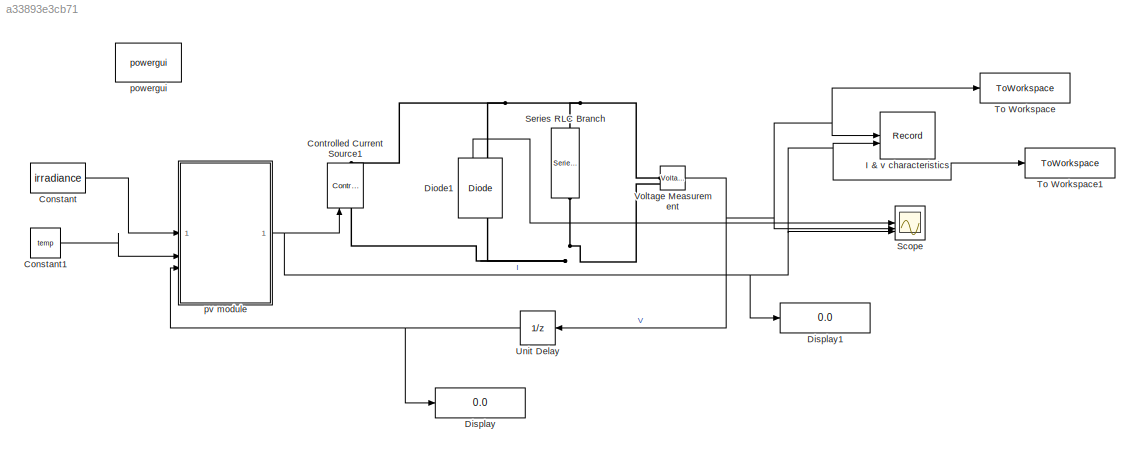
MODEL slx_a33893e3cb71
KIND model
CONFIG AbsTol = auto
CONFIG EnableMultiTasking = on
CONFIG FixedStep = 1e-5
CONFIG MaxStep = auto
CONFIG MinStep = auto
CONFIG RelTol = 1e-3
CONFIG SampleTimeConstraint = Unconstrained
CONFIG SolverName = ode4
CONFIG StartTime = 0.0
CONFIG StopTime = 0.2
WORKSPACE source: mxarray member
WORKSPACE Temperature = 1
WORKSPACE irradience = 1
BLOCK [Constant] Constant
  Value = irradiance
BLOCK [Constant] Constant1
  Value = temp
BLOCK [Reference] Controlled Current Source1  REF=spsControlledCurrentSourceLib/Controlled Current Source
  LibrarySourceBlock = sps_lib/Sources/Controlled Current Source
  NameLocation = right
  SourceBlock = spsControlledCurrentSourceLib/Controlled Current Source
  SourceType = Controlled Current Source
BLOCK [Reference] Diode1  REF=spsDiodeLib/Diode
  LibrarySourceBlock = sps_lib/Power Electronics/Diode
  NameLocation = right
  SourceBlock = spsDiodeLib/Diode
  SourceType = Diode
BLOCK [Display] Display
  Decimation = 1
BLOCK [Display] Display1
  Decimation = 1
BLOCK [Record] I & v characteristics
  CompatibilityTag = XY
  FileSettingsInternal = {"entries":[{"content":{"excelSettings":{"content":{},"type":"Streamout.ExcelSettings"}},"type":"Streamout.FileSettingStorage","uuid":""}],"packageUris":["http:\/\/schema.mathworks.com\/mf0\/streamout_blocks\/R2020a"],"version":"1.0"}
  Layout = [1 1]
  SignalsInternal = {"entries":[{"content":{"signals":[{"content":{"blockPath":[],"dimensions":[1],"domain":"","lineColor":"#a2142f","plots":[ 1 ],"port":1,"signalID":1,"signalName":"V"},"type":"RecordBlkView.Signal","uuid":""},{"content":{"blockPath":[],"dimensions":[1],"domain":"","lineColor":"#139fff","plots":[ 1 ],"port":2,"signalID":2,"signalName":"I"},"type":"RecordBlkView.Signal","uuid":""}]},"type":"RecordBlk...<+126ch>
  VisualizationBindings = {"xyplotplugin":{"info":[{"series":[{"bindingParametersList":[{"parameter":"X-Axis","signalID":1,"signalName":"V"},{"parameter":"Y-Axis","signalID":2,"signalName":"I"}],"seriesID":0}],"subplotID":1}]}}
  st = -1
BLOCK [Scope] Scope
  Floating = off
  NumInputPorts = 3
  ScopeSpecificationString = Simulink.scopes.TimeScopeBlockCfg('CurrentConfiguration', extmgr.ConfigurationSet(extmgr.Configuration('Core','General UI',true),extmgr.Configuration('Core','Source UI',true),extmgr.Configuration('Sources','WiredSimulink',true,'DataLoggingLimitDataPoints',true,'DataLoggingSaveFormat','Array','DataLoggingDecimation','1','DataLoggingDecimateData',true),extmgr.Configuration('Visuals','Time Domain',tr...<+2564ch>
BLOCK [Reference] Series RLC Branch  REF=spsSeriesRLCBranchLib/Series RLC Branch
  LibrarySourceBlock = sps_lib/Passives/Series RLC Branch
  NameLocation = left
  SourceBlock = spsSeriesRLCBranchLib/Series RLC Branch
  SourceType = Series RLC Branch
BLOCK [ToWorkspace] To Workspace
  FixptAsFi = on
  MaxDataPoints = inf
  SampleTime = -1
  VariableName = Vout
BLOCK [ToWorkspace] To Workspace1
  FixptAsFi = on
  MaxDataPoints = inf
  SampleTime = -1
  VariableName = Iout
BLOCK [UnitDelay] Unit Delay
  HasFrameUpgradeWarning = on
  NameLocation = top
  SampleTime = -1
BLOCK [Reference] Voltage Measurement  REF=spsVoltageMeasurementLib/Voltage Measurement
  LibrarySourceBlock = sps_lib/Sensors and Measurements/Voltage Measurement
  SourceBlock = spsVoltageMeasurementLib/Voltage Measurement
  SourceType = Voltage Measurement
BLOCK [Reference] powergui  REF=spspowerguiLib/powergui
  LibrarySourceBlock = sps_lib/powergui
  Priority = 1
  SourceBlock = spspowerguiLib/powergui
  SourceType = PSB option menu block
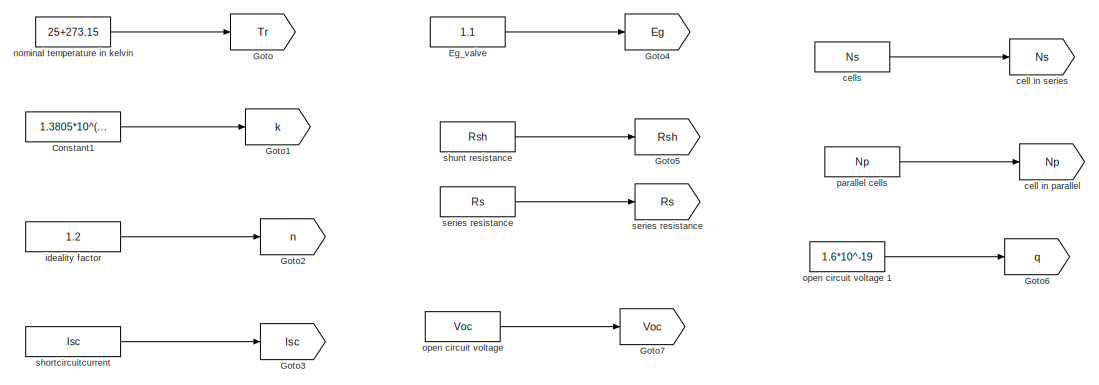
[diagram: pv module - part 1/4, top center region]
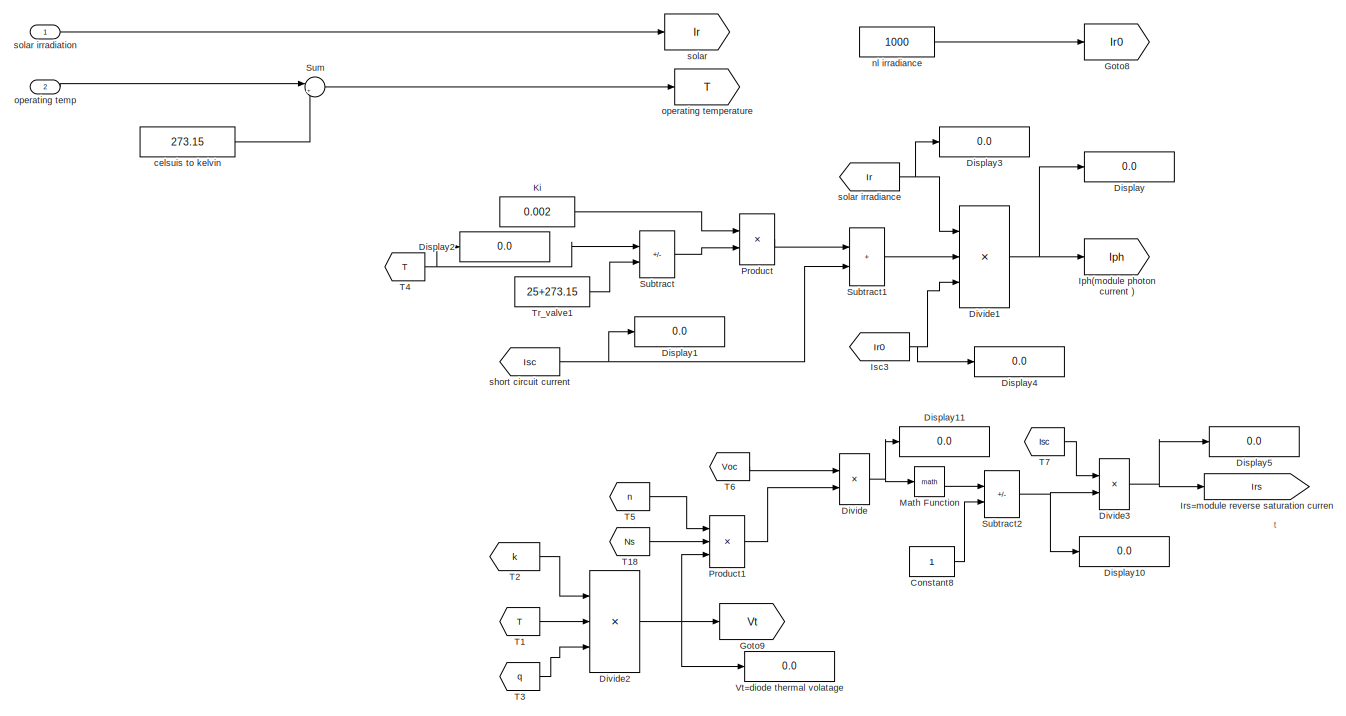
[diagram: pv module - part 2/4, top center region]
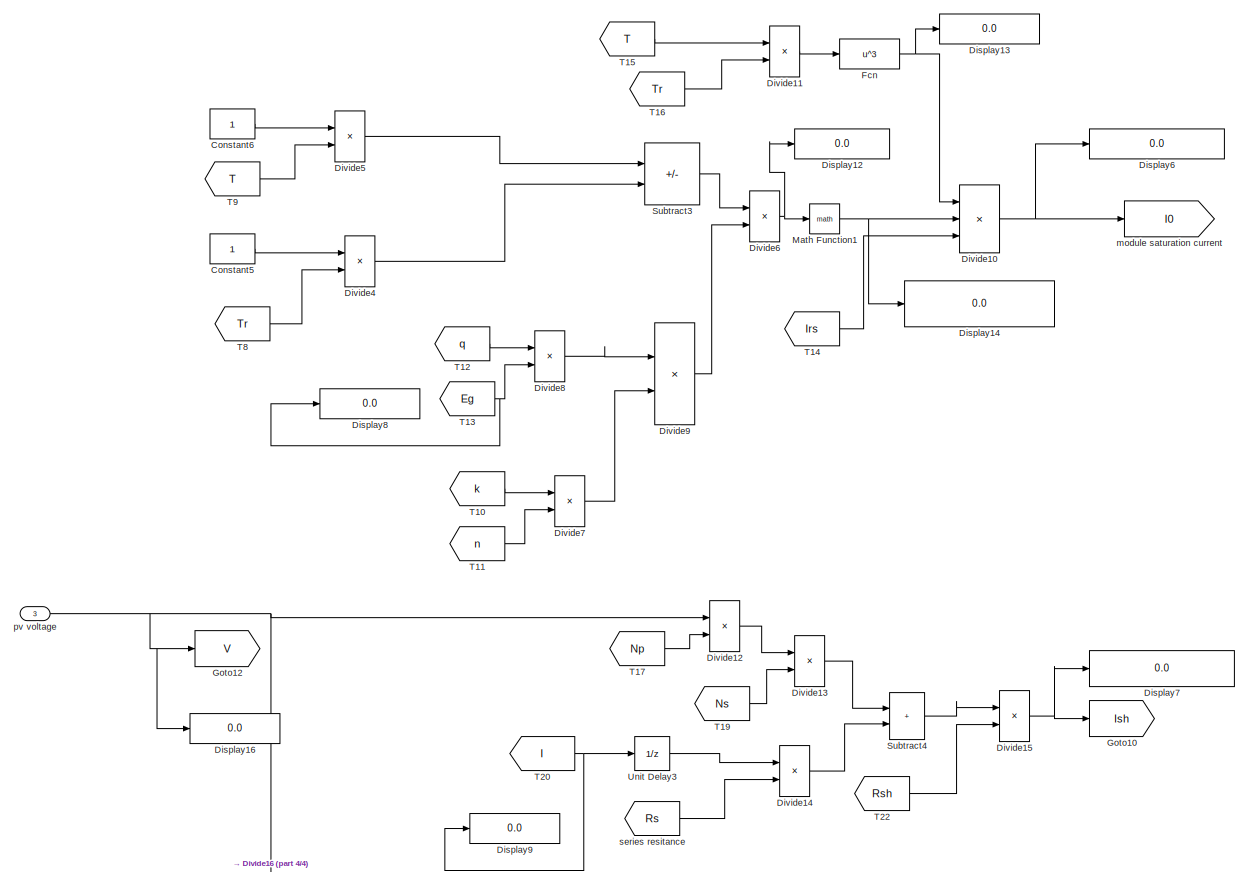
[diagram: pv module - part 3/4, central region]
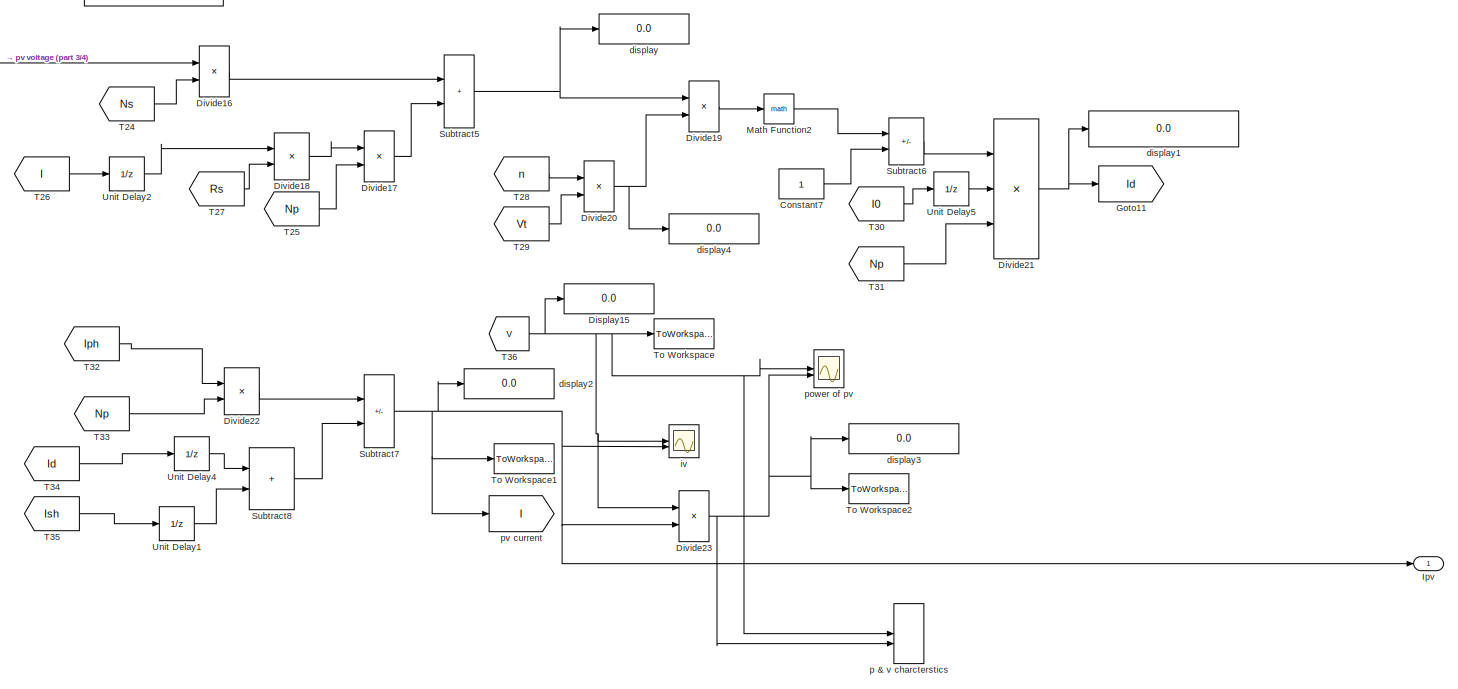
[diagram: pv module - part 4/4, full width, bottom band]
BLOCK [SubSystem] pv module
BLOCK [Constant] pv module/Constant1
  Value = 1.3805*10^(-23)
BLOCK [Constant] pv module/Constant5
BLOCK [Constant] pv module/Constant6
BLOCK [Constant] pv module/Constant7
BLOCK [Constant] pv module/Constant8
BLOCK [Display] pv module/Display
  Decimation = 1
BLOCK [Display] pv module/Display1
  Decimation = 1
BLOCK [Display] pv module/Display10
  Decimation = 1
BLOCK [Display] pv module/Display11
  Decimation = 1
BLOCK [Display] pv module/Display12
  Decimation = 1
  Format = long
BLOCK [Display] pv module/Display13
  Decimation = 1
BLOCK [Display] pv module/Display14
  Decimation = 1
  Format = long
BLOCK [Display] pv module/Display15
  Decimation = 1
BLOCK [Display] pv module/Display16
  Decimation = 1
BLOCK [Display] pv module/Display2
  Decimation = 1
BLOCK [Display] pv module/Display3
  Decimation = 1
BLOCK [Display] pv module/Display4
  Decimation = 1
BLOCK [Display] pv module/Display5
  Decimation = 1
BLOCK [Display] pv module/Display6
  Decimation = 1
BLOCK [Display] pv module/Display7
  Decimation = 1
BLOCK [Display] pv module/Display8
  Decimation = 1
BLOCK [Display] pv module/Display9
  Decimation = 1
BLOCK [Product] pv module/Divide
  Inputs = */
BLOCK [Product] pv module/Divide1
  Inputs = **/
BLOCK [Product] pv module/Divide10
  Inputs = ***
BLOCK [Product] pv module/Divide11
  Inputs = */
BLOCK [Product] pv module/Divide12
  Inputs = **
BLOCK [Product] pv module/Divide13
  Inputs = */
BLOCK [Product] pv module/Divide14
  Inputs = **
BLOCK [Product] pv module/Divide15
  Inputs = */
BLOCK [Product] pv module/Divide16
  Inputs = */
BLOCK [Product] pv module/Divide17
  Inputs = */
BLOCK [Product] pv module/Divide18
  Inputs = **
BLOCK [Product] pv module/Divide19
  Inputs = */
BLOCK [Product] pv module/Divide2
  Inputs = **/
BLOCK [Product] pv module/Divide20
  Inputs = **
BLOCK [Product] pv module/Divide21
  Inputs = ***
BLOCK [Product] pv module/Divide22
  Inputs = **
BLOCK [Product] pv module/Divide23
  Inputs = **
BLOCK [Product] pv module/Divide3
  Inputs = */
BLOCK [Product] pv module/Divide4
  Inputs = */
BLOCK [Product] pv module/Divide5
  Inputs = */
BLOCK [Product] pv module/Divide6
  Inputs = **
BLOCK [Product] pv module/Divide7
  Inputs = **
BLOCK [Product] pv module/Divide8
  Inputs = **
BLOCK [Product] pv module/Divide9
  Inputs = */
BLOCK [Constant] pv module/Eg_valve 
  Value = 1.1
BLOCK [Fcn] pv module/Fcn
  Expr = u^3
BLOCK [Goto] pv module/Goto
  GotoTag = Tr
BLOCK [Goto] pv module/Goto1
  GotoTag = k
BLOCK [Goto] pv module/Goto10
  GotoTag = Ish
BLOCK [Goto] pv module/Goto11
  GotoTag = Id
BLOCK [Goto] pv module/Goto12
  GotoTag = V
BLOCK [Goto] pv module/Goto2
  GotoTag = n
BLOCK [Goto] pv module/Goto3
  GotoTag = Isc
BLOCK [Goto] pv module/Goto4
  GotoTag = Eg
BLOCK [Goto] pv module/Goto5
  GotoTag = Rsh
BLOCK [Goto] pv module/Goto6
  GotoTag = q
BLOCK [Goto] pv module/Goto7
  GotoTag = Voc
BLOCK [Goto] pv module/Goto8
  GotoTag = Ir0
BLOCK [Goto] pv module/Goto9
  GotoTag = Vt
BLOCK [Goto] pv module/Iph(module photon current )
  GotoTag = Iph
BLOCK [Outport] pv module/Ipv
BLOCK [Goto] pv module/Irs=module reverse saturation curren 
  GotoTag = Irs
BLOCK [From] pv module/Isc3
  GotoTag = Ir0
BLOCK [Constant] pv module/Ki
  Value = 0.002
BLOCK [Math] pv module/Math Function
  SignedPower = on
BLOCK [Math] pv module/Math Function1
  SignedPower = on
BLOCK [Math] pv module/Math Function2
  SignedPower = on
BLOCK [Product] pv module/Product
BLOCK [Product] pv module/Product1
  Inputs = 3
BLOCK [Sum] pv module/Subtract
  IconShape = rectangular
  Inputs = +-
BLOCK [Sum] pv module/Subtract1
  IconShape = rectangular
BLOCK [Sum] pv module/Subtract2
  IconShape = rectangular
  Inputs = +-
BLOCK [Sum] pv module/Subtract3
  IconShape = rectangular
  Inputs = +-
BLOCK [Sum] pv module/Subtract4
  IconShape = rectangular
BLOCK [Sum] pv module/Subtract5
  IconShape = rectangular
BLOCK [Sum] pv module/Subtract6
  IconShape = rectangular
  Inputs = +-
BLOCK [Sum] pv module/Subtract7
  IconShape = rectangular
  Inputs = +-
BLOCK [Sum] pv module/Subtract8
  IconShape = rectangular
BLOCK [Sum] pv module/Sum
  Inputs = |++
BLOCK [From] pv module/T1
  GotoTag = T
BLOCK [From] pv module/T10
  GotoTag = k
BLOCK [From] pv module/T11
  GotoTag = n
BLOCK [From] pv module/T12
  GotoTag = q
BLOCK [From] pv module/T13
  GotoTag = Eg
BLOCK [From] pv module/T14
  GotoTag = Irs
BLOCK [From] pv module/T15
  GotoTag = T
BLOCK [From] pv module/T16
  GotoTag = Tr
BLOCK [From] pv module/T17
  GotoTag = Np
BLOCK [From] pv module/T18
  GotoTag = Ns
BLOCK [From] pv module/T19
  GotoTag = Ns
BLOCK [From] pv module/T2
  GotoTag = k
BLOCK [From] pv module/T20
  GotoTag = I
BLOCK [From] pv module/T22
  GotoTag = Rsh
BLOCK [From] pv module/T24
  GotoTag = Ns
BLOCK [From] pv module/T25
  GotoTag = Np
BLOCK [From] pv module/T26
  GotoTag = I
BLOCK [From] pv module/T27
  GotoTag = Rs
BLOCK [From] pv module/T28
  GotoTag = n
BLOCK [From] pv module/T29
  GotoTag = Vt
BLOCK [From] pv module/T3
  GotoTag = q
BLOCK [From] pv module/T30
  GotoTag = I0
BLOCK [From] pv module/T31
  GotoTag = Np
BLOCK [From] pv module/T32
  GotoTag = Iph
BLOCK [From] pv module/T33
  GotoTag = Np
BLOCK [From] pv module/T34
  GotoTag = Id
BLOCK [From] pv module/T35
  GotoTag = Ish
BLOCK [From] pv module/T36
  GotoTag = V
BLOCK [From] pv module/T4
  GotoTag = T
BLOCK [From] pv module/T5
  GotoTag = n
BLOCK [From] pv module/T6
  GotoTag = Voc
BLOCK [From] pv module/T7
  GotoTag = Isc
BLOCK [From] pv module/T8
  GotoTag = Tr
BLOCK [From] pv module/T9
  GotoTag = T
BLOCK [ToWorkspace] pv module/To Workspace
  MaxDataPoints = inf
  SampleTime = -1
  SaveFormat = Timeseries
  VariableName = Volt
BLOCK [ToWorkspace] pv module/To Workspace1
  MaxDataPoints = inf
  SampleTime = -1
  SaveFormat = Timeseries
  VariableName = Ampe
BLOCK [ToWorkspace] pv module/To Workspace2
  MaxDataPoints = inf
  SampleTime = -1
  SaveFormat = Timeseries
  VariableName = P
BLOCK [Constant] pv module/Tr_valve1
  Value = 25+273.15
BLOCK [UnitDelay] pv module/Unit Delay1
  HasFrameUpgradeWarning = on
  SampleTime = -1
BLOCK [UnitDelay] pv module/Unit Delay2
  HasFrameUpgradeWarning = on
  SampleTime = -1
BLOCK [UnitDelay] pv module/Unit Delay3
  HasFrameUpgradeWarning = on
  SampleTime = -1
BLOCK [UnitDelay] pv module/Unit Delay4
  HasFrameUpgradeWarning = on
  SampleTime = -1
BLOCK [UnitDelay] pv module/Unit Delay5
  HasFrameUpgradeWarning = on
  SampleTime = -1
BLOCK [Display] pv module/Vt=diode thermal volatage
  Decimation = 1
BLOCK [Goto] pv module/cell in parallel 
  GotoTag = Np
BLOCK [Goto] pv module/cell in series 
  GotoTag = Ns
BLOCK [Constant] pv module/cells
  Value = Ns
BLOCK [Constant] pv module/celsuis to kelvin
  Value = 273.15
BLOCK [Display] pv module/display
  Decimation = 1
BLOCK [Display] pv module/display1
  Decimation = 1
  Format = long
BLOCK [Display] pv module/display2
  Decimation = 1
BLOCK [Display] pv module/display3
  Decimation = 1
  Format = long
BLOCK [Display] pv module/display4
  Decimation = 1
BLOCK [Constant] pv module/ideality factor
  Value = 1.2
BLOCK [Scope] pv module/iv
  Floating = off
  NumInputPorts = 2
  ScopeSpecificationString = C++SS(StrPVP('Location','[188, 365, 512, 604]'),StrPVP('Open','off'),MxPVP('AxesTitles',54,'struct(''axes1'',''%<SignalLabel>'',''axes2'',''%<SignalLabel>'')'),StrPVP('ShowLegends','off'),StrPVP('LimitDataPoints','on'),StrPVP('DataFormat','Array'),StrPVP('Decimation','1'),StrPVP('BlockParamSampleInput','off'))
BLOCK [Goto] pv module/module saturation current
  GotoTag = I0
BLOCK [Constant] pv module/nl irradiance
  Value = 1000
BLOCK [Constant] pv module/nominal temperature in kelvin 
  Value = 25+273.15
BLOCK [Constant] pv module/open circuit voltage 
  Value = Voc
BLOCK [Constant] pv module/open circuit voltage 1
  Value = 1.6*10^-19
BLOCK [Inport] pv module/operating temp
  Port = 2
BLOCK [Goto] pv module/operating temperature
  GotoTag = T
BLOCK [Record] pv module/p & v charcterstics 
  CompatibilityTag = XY
  FileSettingsInternal = {"entries":[{"content":{"excelSettings":{"content":{},"type":"Streamout.ExcelSettings"}},"type":"Streamout.FileSettingStorage","uuid":""}],"packageUris":["http:\/\/schema.mathworks.com\/mf0\/streamout_blocks\/R2020a"],"version":"1.0"}
  Layout = [1 1]
  SignalsInternal = {"entries":[{"content":{"signals":[{"content":{"blockPath":[],"dimensions":[1],"domain":"","lineColor":"#a2142f","plots":[ 1 ],"port":1,"signalID":1,"signalName":"T36"},"type":"RecordBlkView.Signal","uuid":""},{"content":{"blockPath":[],"dimensions":[1],"domain":"","lineColor":"#139fff","plots":[ 1 ],"port":2,"signalID":2,"signalName":"Divide23"},"type":"RecordBlkView.Signal","uuid":""}]},"type":"...<+135ch>
  VisualizationBindings = {"xyplotplugin":{"info":[{"series":[{"bindingParametersList":[{"parameter":"X-Axis","signalID":1,"signalName":"T36"},{"parameter":"Y-Axis","signalID":2,"signalName":"Divide23"}],"seriesID":0}],"subplotID":1}]}}
  st = -1
BLOCK [Constant] pv module/parallel cells
  Value = Np
BLOCK [Scope] pv module/power of pv
  Floating = off
  NumInputPorts = 2
  ScopeSpecificationString = C++SS(StrPVP('Location','[188, 365, 512, 604]'),StrPVP('Open','off'),MxPVP('AxesTitles',54,'struct(''axes1'',''%<SignalLabel>'',''axes2'',''%<SignalLabel>'')'),StrPVP('ShowLegends','off'),StrPVP('LimitDataPoints','on'),StrPVP('DataFormat','Array'),StrPVP('Decimation','1'),StrPVP('BlockParamSampleInput','off'))
BLOCK [Goto] pv module/pv current 
  GotoTag = I
BLOCK [Inport] pv module/pv voltage
  Port = 3
BLOCK [Constant] pv module/series resistance
  Value = Rs
BLOCK [Goto] pv module/series resistance 
  GotoTag = Rs
BLOCK [From] pv module/series resitance
  GotoTag = Rs
BLOCK [From] pv module/short circuit current
  GotoTag = Isc
BLOCK [Constant] pv module/shortcircuitcurrent 
  Value = Isc
BLOCK [Constant] pv module/shunt resistance 
  Value = Rsh
BLOCK [Goto] pv module/solar 
  GotoTag = Ir
BLOCK [From] pv module/solar irradiance
  GotoTag = Ir
BLOCK [Inport] pv module/solar irradiation
ANNOTATION pv module: t
LINE Constant1:1 -> pv module:2
LINE Constant:1 -> pv module:1
LINE Diode1:1 -> Scope:1
NET Unit Delay:1 -> Display:1, pv module:3
NET Voltage Measurement:1 -> I & v characteristics:1, Scope:2, To Workspace:1, Unit Delay:1
LINE pv module/Constant1:1 -> pv module/Goto1:1
LINE pv module/Constant5:1 -> pv module/Divide4:1
LINE pv module/Constant6:1 -> pv module/Divide5:1
LINE pv module/Constant7:1 -> pv module/Subtract6:2
LINE pv module/Constant8:1 -> pv module/Subtract2:2
NET pv module/Divide10:1 -> pv module/Display6:1, pv module/module saturation current:1
LINE pv module/Divide11:1 -> pv module/Fcn:1
LINE pv module/Divide12:1 -> pv module/Divide13:1
LINE pv module/Divide13:1 -> pv module/Subtract4:1
LINE pv module/Divide14:1 -> pv module/Subtract4:2
NET pv module/Divide15:1 -> pv module/Display7:1, pv module/Goto10:1
LINE pv module/Divide16:1 -> pv module/Subtract5:1
LINE pv module/Divide17:1 -> pv module/Subtract5:2
LINE pv module/Divide18:1 -> pv module/Divide17:1
LINE pv module/Divide19:1 -> pv module/Math Function2:1
NET pv module/Divide1:1 -> pv module/Display:1, pv module/Iph(module photon current ):1
NET pv module/Divide20:1 -> pv module/Divide19:2, pv module/display4:1
NET pv module/Divide21:1 -> pv module/Goto11:1, pv module/display1:1
LINE pv module/Divide22:1 -> pv module/Subtract7:1
NET pv module/Divide23:1 -> pv module/To Workspace2:1, pv module/display3:1, pv module/p & v charcterstics :2, pv module/power of pv:2
NET pv module/Divide2:1 -> pv module/Goto9:1, pv module/Product1:3, pv module/Vt=diode thermal volatage:1
NET pv module/Divide3:1 -> pv module/Display5:1, pv module/Irs=module reverse saturation curren :1
LINE pv module/Divide4:1 -> pv module/Subtract3:2
LINE pv module/Divide5:1 -> pv module/Subtract3:1
NET pv module/Divide6:1 -> pv module/Display12:1, pv module/Math Function1:1
LINE pv module/Divide7:1 -> pv module/Divide9:2
LINE pv module/Divide8:1 -> pv module/Divide9:1
LINE pv module/Divide9:1 -> pv module/Divide6:2
NET pv module/Divide:1 -> pv module/Display11:1, pv module/Math Function:1
LINE pv module/Eg_valve :1 -> pv module/Goto4:1
NET pv module/Fcn:1 -> pv module/Display13:1, pv module/Divide10:1
NET pv module/Isc3:1 -> pv module/Display4:1, pv module/Divide1:3
LINE pv module/Ki:1 -> pv module/Product:1
NET pv module/Math Function1:1 -> pv module/Display14:1, pv module/Divide10:2
LINE pv module/Math Function2:1 -> pv module/Subtract6:1
LINE pv module/Math Function:1 -> pv module/Subtract2:1
LINE pv module/Product1:1 -> pv module/Divide:2
LINE pv module/Product:1 -> pv module/Subtract1:1
LINE pv module/Subtract1:1 -> pv module/Divide1:2
NET pv module/Subtract2:1 -> pv module/Display10:1, pv module/Divide3:2
LINE pv module/Subtract3:1 -> pv module/Divide6:1
LINE pv module/Subtract4:1 -> pv module/Divide15:1
NET pv module/Subtract5:1 -> pv module/Divide19:1, pv module/display:1
LINE pv module/Subtract6:1 -> pv module/Divide21:1
NET pv module/Subtract7:1 -> pv module/Divide23:2, pv module/Ipv:1, pv module/To Workspace1:1, pv module/display2:1, pv module/iv:2, pv module/pv current :1
LINE pv module/Subtract8:1 -> pv module/Subtract7:2
LINE pv module/Subtract:1 -> pv module/Product:2
LINE pv module/Sum:1 -> pv module/operating temperature:1
LINE pv module/T10:1 -> pv module/Divide7:1
LINE pv module/T11:1 -> pv module/Divide7:2
LINE pv module/T12:1 -> pv module/Divide8:1
NET pv module/T13:1 -> pv module/Display8:1, pv module/Divide8:2
LINE pv module/T14:1 -> pv module/Divide10:3
LINE pv module/T15:1 -> pv module/Divide11:1
LINE pv module/T16:1 -> pv module/Divide11:2
LINE pv module/T17:1 -> pv module/Divide12:2
LINE pv module/T18:1 -> pv module/Product1:2
LINE pv module/T19:1 -> pv module/Divide13:2
LINE pv module/T1:1 -> pv module/Divide2:2
NET pv module/T20:1 -> pv module/Display9:1, pv module/Unit Delay3:1
LINE pv module/T22:1 -> pv module/Divide15:2
LINE pv module/T24:1 -> pv module/Divide16:2
LINE pv module/T25:1 -> pv module/Divide17:2
LINE pv module/T26:1 -> pv module/Unit Delay2:1
LINE pv module/T27:1 -> pv module/Divide18:2
LINE pv module/T28:1 -> pv module/Divide20:1
LINE pv module/T29:1 -> pv module/Divide20:2
LINE pv module/T2:1 -> pv module/Divide2:1
LINE pv module/T30:1 -> pv module/Unit Delay5:1
LINE pv module/T31:1 -> pv module/Divide21:3
LINE pv module/T32:1 -> pv module/Divide22:1
LINE pv module/T33:1 -> pv module/Divide22:2
LINE pv module/T34:1 -> pv module/Unit Delay4:1
LINE pv module/T35:1 -> pv module/Unit Delay1:1
NET pv module/T36:1 -> pv module/Display15:1, pv module/Divide23:1, pv module/To Workspace:1, pv module/iv:1, pv module/p & v charcterstics :1, pv module/power of pv:1
LINE pv module/T3:1 -> pv module/Divide2:3
NET pv module/T4:1 -> pv module/Display2:1, pv module/Subtract:1
LINE pv module/T5:1 -> pv module/Product1:1
LINE pv module/T6:1 -> pv module/Divide:1
LINE pv module/T7:1 -> pv module/Divide3:1
LINE pv module/T8:1 -> pv module/Divide4:2
LINE pv module/T9:1 -> pv module/Divide5:2
LINE pv module/Tr_valve1:1 -> pv module/Subtract:2
LINE pv module/Unit Delay1:1 -> pv module/Subtract8:2
LINE pv module/Unit Delay2:1 -> pv module/Divide18:1
LINE pv module/Unit Delay3:1 -> pv module/Divide14:1
LINE pv module/Unit Delay4:1 -> pv module/Subtract8:1
LINE pv module/Unit Delay5:1 -> pv module/Divide21:2
LINE pv module/cells:1 -> pv module/cell in series :1
LINE pv module/celsuis to kelvin:1 -> pv module/Sum:2
LINE pv module/ideality factor:1 -> pv module/Goto2:1
LINE pv module/nl irradiance:1 -> pv module/Goto8:1
LINE pv module/nominal temperature in kelvin :1 -> pv module/Goto:1
LINE pv module/open circuit voltage 1:1 -> pv module/Goto6:1
LINE pv module/open circuit voltage :1 -> pv module/Goto7:1
LINE pv module/operating temp:1 -> pv module/Sum:1
LINE pv module/parallel cells:1 -> pv module/cell in parallel :1
NET pv module/pv voltage:1 -> pv module/Display16:1, pv module/Divide12:1, pv module/Divide16:1, pv module/Goto12:1
LINE pv module/series resistance:1 -> pv module/series resistance :1
LINE pv module/series resitance:1 -> pv module/Divide14:2
NET pv module/short circuit current:1 -> pv module/Display1:1, pv module/Subtract1:2
LINE pv module/shortcircuitcurrent :1 -> pv module/Goto3:1
LINE pv module/shunt resistance :1 -> pv module/Goto5:1
NET pv module/solar irradiance:1 -> pv module/Display3:1, pv module/Divide1:1
LINE pv module/solar irradiation:1 -> pv module/solar :1
NET pv module:1 -> Controlled Current Source1:1, Display1:1, I & v characteristics:2, Scope:3, To Workspace1:1
PNET net1: Controlled Current Source1:LConn1 -- Diode1:LConn1 -- Series RLC Branch:RConn1 -- Voltage Measurement:LConn2
PNET net2: Controlled Current Source1:RConn1 -- Diode1:RConn1 -- Series RLC Branch:LConn1 -- Voltage Measurement:LConn1
note: NET lines group one-source signal fan-out (src -> all destinations, sorted); 1:1 wires keep LINE; PNET lines group multi-terminal physical nets as a canonical sorted terminal list (undirected conserving connections); 2-terminal nets keep the pairwise PLINE form
